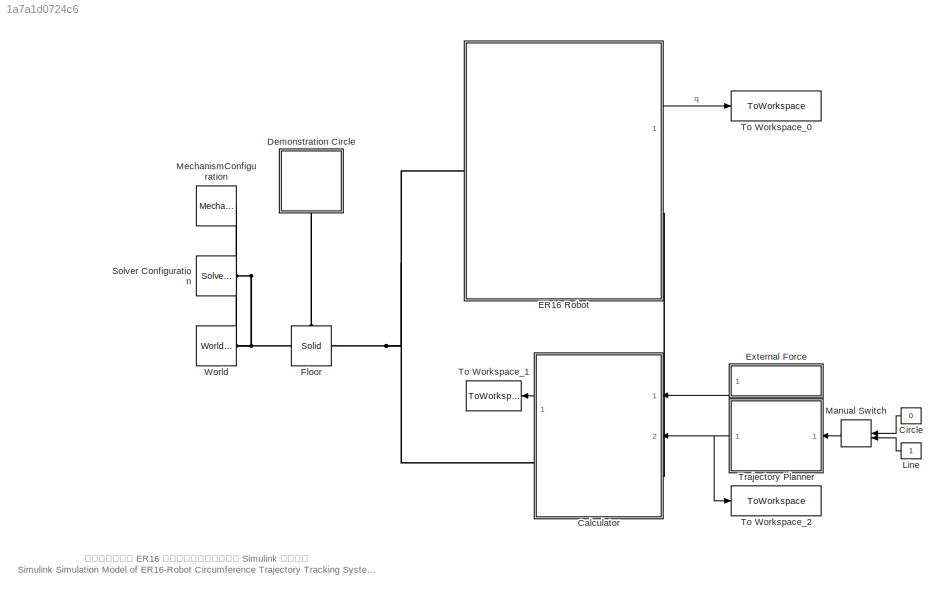
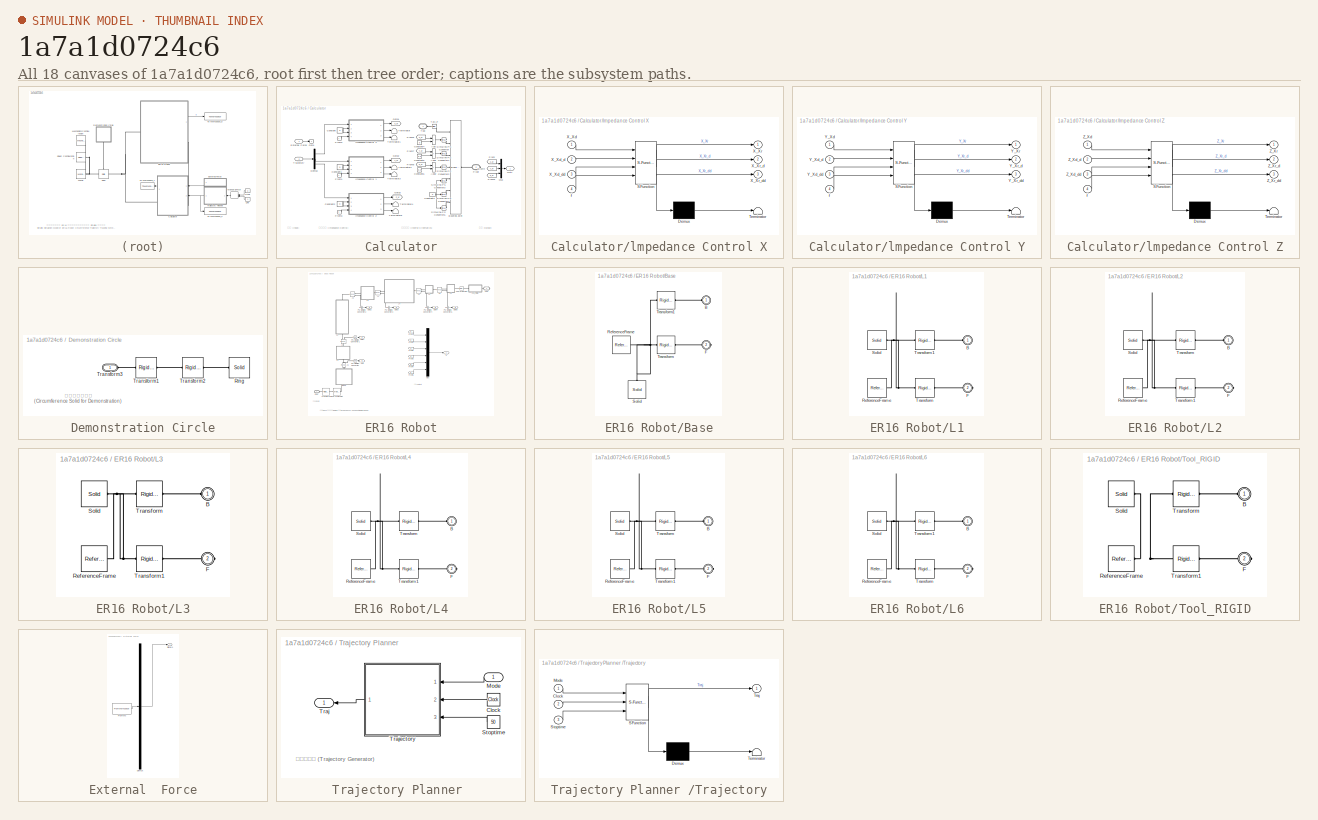
[diagram: thumbnail index - all 18 canvases of the model, root first then tree order]
MODEL slx_1a7a1d0724c6
KIND model
CONFIG AbsTol = auto
CONFIG EnableMultiTasking = off
CONFIG FixedStep = auto
CONFIG MaxStep = auto
CONFIG MinStep = auto
CONFIG PreLoadFcn = run('ER16_DataFile.m'); % 手动加载模型装配数据
CONFIG RelTol = 1e-3
CONFIG SampleTimeConstraint = Unconstrained
CONFIG Solver = ode15s
CONFIG SolverName = ode15s
CONFIG StartTime = 0.0
CONFIG StopTime = 50
WORKSPACE source: external: MATLAB File  (data not in archive)
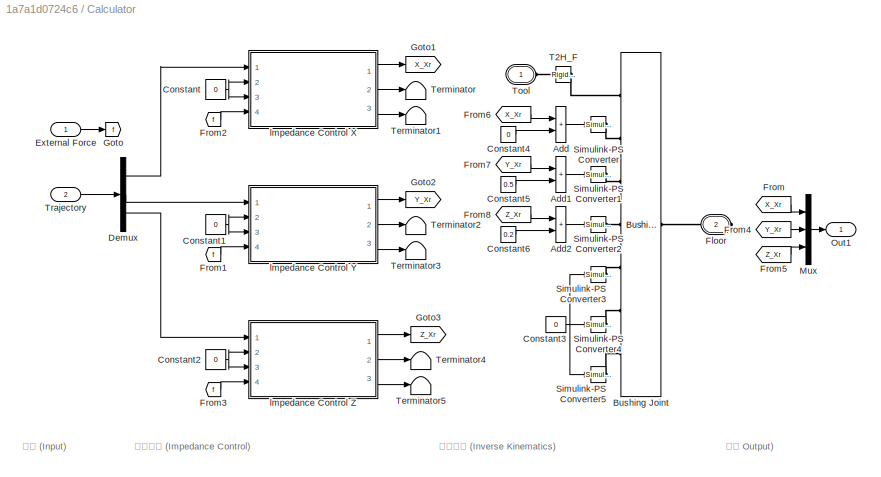
BLOCK [SubSystem] Calculator
  Ports = [2, 1, 0, 0, 0, 1, 1]
  RequestExecContextInheritance = off
BLOCK [Sum] Calculator/Add
  IconShape = rectangular
  Ports = [2, 1]
BLOCK [Sum] Calculator/Add1
  IconShape = rectangular
  Ports = [2, 1]
BLOCK [Sum] Calculator/Add2
  IconShape = rectangular
  Ports = [2, 1]
BLOCK [Reference] Calculator/Bushing Joint  REF=sm_lib/Joints/Bushing Joint
  Ports = [0, 0, 0, 0, 0, 7, 1]
  SourceBlock = sm_lib/Joints/Bushing Joint
  SourceProductBaseCode = MS
  SourceType = Bushing Joint
BLOCK [Constant] Calculator/Constant
  Value = 0
BLOCK [Constant] Calculator/Constant1
  Value = 0
BLOCK [Constant] Calculator/Constant2
  Value = 0
BLOCK [Constant] Calculator/Constant3
  Value = 0
BLOCK [Constant] Calculator/Constant4
  Value = 0
BLOCK [Constant] Calculator/Constant5
  Value = 0.5
BLOCK [Constant] Calculator/Constant6
  Value = 0.2
BLOCK [Demux] Calculator/Demux
  Outputs = 3
  Ports = [1, 3]
BLOCK [Inport] Calculator/External Force
BLOCK [PMIOPort] Calculator/Floor
  Port = 2
  Side = Right
BLOCK [From] Calculator/From
  GotoTag = X_Xr
BLOCK [From] Calculator/From1
  GotoTag = f
BLOCK [From] Calculator/From2
  GotoTag = f
BLOCK [From] Calculator/From3
  GotoTag = f
BLOCK [From] Calculator/From4
  GotoTag = Y_Xr
BLOCK [From] Calculator/From5
  GotoTag = Z_Xr
BLOCK [From] Calculator/From6
  GotoTag = X_Xr
BLOCK [From] Calculator/From7
  GotoTag = Y_Xr
BLOCK [From] Calculator/From8
  GotoTag = Z_Xr
BLOCK [Goto] Calculator/Goto
  GotoTag = f
BLOCK [Goto] Calculator/Goto1
  GotoTag = X_Xr
BLOCK [Goto] Calculator/Goto2
  GotoTag = Y_Xr
BLOCK [Goto] Calculator/Goto3
  GotoTag = Z_Xr
BLOCK [Mux] Calculator/Mux
  DisplayOption = bar
  Inputs = 3
  Ports = [3, 1]
BLOCK [Outport] Calculator/Out1
BLOCK [Reference] Calculator/Simulink-PS Converter  REF=nesl_utility/Simulink-PS
Converter
  Ports = [1, 0, 0, 0, 0, 0, 1]
  SourceBlock = nesl_utility/Simulink-PS\nConverter
  SourceProductBaseCode = SS
  SourceType = Simulink-PS\nConverter
BLOCK [Reference] Calculator/Simulink-PS Converter1  REF=nesl_utility/Simulink-PS
Converter
  Ports = [1, 0, 0, 0, 0, 0, 1]
  SourceBlock = nesl_utility/Simulink-PS\nConverter
  SourceProductBaseCode = SS
  SourceType = Simulink-PS\nConverter
BLOCK [Reference] Calculator/Simulink-PS Converter2  REF=nesl_utility/Simulink-PS
Converter
  Ports = [1, 0, 0, 0, 0, 0, 1]
  SourceBlock = nesl_utility/Simulink-PS\nConverter
  SourceProductBaseCode = SS
  SourceType = Simulink-PS\nConverter
BLOCK [Reference] Calculator/Simulink-PS Converter3  REF=nesl_utility/Simulink-PS
Converter
  Ports = [1, 0, 0, 0, 0, 0, 1]
  SourceBlock = nesl_utility/Simulink-PS\nConverter
  SourceProductBaseCode = SS
  SourceType = Simulink-PS\nConverter
BLOCK [Reference] Calculator/Simulink-PS Converter4  REF=nesl_utility/Simulink-PS
Converter
  Ports = [1, 0, 0, 0, 0, 0, 1]
  SourceBlock = nesl_utility/Simulink-PS\nConverter
  SourceProductBaseCode = SS
  SourceType = Simulink-PS\nConverter
BLOCK [Reference] Calculator/Simulink-PS Converter5  REF=nesl_utility/Simulink-PS
Converter
  Ports = [1, 0, 0, 0, 0, 0, 1]
  SourceBlock = nesl_utility/Simulink-PS\nConverter
  SourceProductBaseCode = SS
  SourceType = Simulink-PS\nConverter
BLOCK [Reference] Calculator/T2H_F  REF=sm_lib/Frames and
Transforms/Rigid
Transform
  Ports = [0, 0, 0, 0, 0, 1, 1]
  SourceBlock = sm_lib/Frames and\nTransforms/Rigid\nTransform
  SourceProductBaseCode = MS
  SourceType = Rigid\nTransform
BLOCK [Terminator] Calculator/Terminator
BLOCK [Terminator] Calculator/Terminator1
BLOCK [Terminator] Calculator/Terminator2
BLOCK [Terminator] Calculator/Terminator3
BLOCK [Terminator] Calculator/Terminator4
BLOCK [Terminator] Calculator/Terminator5
BLOCK [PMIOPort] Calculator/Tool
  Side = Left
BLOCK [Inport] Calculator/Trajectory
  Port = 2
BLOCK [SubSystem] Calculator/lmpedance Control X
  ErrorFcn = Stateflow.Translate.translate
  PermitHierarchicalResolution = ExplicitOnly
  Ports = [4, 3]
  RequestExecContextInheritance = off
  SFBlockType = MATLAB Function
  TreatAsAtomicUnit = on
BLOCK [Demux] Calculator/lmpedance Control X/ Demux 
  Outputs = 1
  Ports = [1, 1]
BLOCK [S-Function] Calculator/lmpedance Control X/ SFunction 
  EnableBusSupport = on
  FunctionName = sf_sfun
  PortCounts = [4 4]
  Ports = [4, 4]
  SFcnIsStateOwnerBlock = off
  SFunctionDeploymentMode = off
  Tag = Stateflow S-Function ER16_Simulation_Circle_2018a 2
BLOCK [Terminator] Calculator/lmpedance Control X/ Terminator 
BLOCK [Inport] Calculator/lmpedance Control X/X_Xd
BLOCK [Inport] Calculator/lmpedance Control X/X_Xd_d
  Port = 2
BLOCK [Inport] Calculator/lmpedance Control X/X_Xd_dd
  Port = 3
BLOCK [Outport] Calculator/lmpedance Control X/X_Xr
BLOCK [Outport] Calculator/lmpedance Control X/X_Xr_d
  Port = 2
BLOCK [Outport] Calculator/lmpedance Control X/X_Xr_dd
  Port = 3
BLOCK [Inport] Calculator/lmpedance Control X/f
  Port = 4
BLOCK [SubSystem] Calculator/lmpedance Control Y
  ErrorFcn = Stateflow.Translate.translate
  PermitHierarchicalResolution = ExplicitOnly
  Ports = [4, 3]
  RequestExecContextInheritance = off
  SFBlockType = MATLAB Function
  TreatAsAtomicUnit = on
BLOCK [Demux] Calculator/lmpedance Control Y/ Demux 
  Outputs = 1
  Ports = [1, 1]
BLOCK [S-Function] Calculator/lmpedance Control Y/ SFunction 
  EnableBusSupport = on
  FunctionName = sf_sfun
  PortCounts = [4 4]
  Ports = [4, 4]
  SFcnIsStateOwnerBlock = off
  SFunctionDeploymentMode = off
  Tag = Stateflow S-Function ER16_Simulation_Circle_2018a 1
BLOCK [Terminator] Calculator/lmpedance Control Y/ Terminator 
BLOCK [Inport] Calculator/lmpedance Control Y/Y_Xd
BLOCK [Inport] Calculator/lmpedance Control Y/Y_Xd_d
  Port = 2
BLOCK [Inport] Calculator/lmpedance Control Y/Y_Xd_dd
  Port = 3
BLOCK [Outport] Calculator/lmpedance Control Y/Y_Xr
BLOCK [Outport] Calculator/lmpedance Control Y/Y_Xr_d
  Port = 2
BLOCK [Outport] Calculator/lmpedance Control Y/Y_Xr_dd
  Port = 3
BLOCK [Inport] Calculator/lmpedance Control Y/f
  Port = 4
BLOCK [SubSystem] Calculator/lmpedance Control Z
  ErrorFcn = Stateflow.Translate.translate
  PermitHierarchicalResolution = ExplicitOnly
  Ports = [4, 3]
  RequestExecContextInheritance = off
  SFBlockType = MATLAB Function
  TreatAsAtomicUnit = on
BLOCK [Demux] Calculator/lmpedance Control Z/ Demux 
  Outputs = 1
  Ports = [1, 1]
BLOCK [S-Function] Calculator/lmpedance Control Z/ SFunction 
  EnableBusSupport = on
  FunctionName = sf_sfun
  PortCounts = [4 4]
  Ports = [4, 4]
  SFcnIsStateOwnerBlock = off
  SFunctionDeploymentMode = off
  Tag = Stateflow S-Function ER16_Simulation_Circle_2018a 3
BLOCK [Terminator] Calculator/lmpedance Control Z/ Terminator 
BLOCK [Inport] Calculator/lmpedance Control Z/Z_Xd
BLOCK [Inport] Calculator/lmpedance Control Z/Z_Xd_d
  Port = 2
BLOCK [Inport] Calculator/lmpedance Control Z/Z_Xd_dd
  Port = 3
BLOCK [Outport] Calculator/lmpedance Control Z/Z_Xr
BLOCK [Outport] Calculator/lmpedance Control Z/Z_Xr_d
  Port = 2
BLOCK [Outport] Calculator/lmpedance Control Z/Z_Xr_dd
  Port = 3
BLOCK [Inport] Calculator/lmpedance Control Z/f
  Port = 4
BLOCK [Constant] Circle
  Value = 0
BLOCK [SubSystem] Demonstration Circle
  Ports = [0, 0, 0, 0, 0, 1]
  RequestExecContextInheritance = off
BLOCK [Reference] Demonstration Circle/Ring  REF=sm_lib/Body Elements/Solid
  Ports = [0, 0, 0, 0, 0, 0, 1]
  SourceBlock = sm_lib/Body Elements/Solid
  SourceProductBaseCode = MS
  SourceType = File Solid
BLOCK [Reference] Demonstration Circle/Transform1  REF=sm_lib/Frames and
Transforms/Rigid
Transform
  Ports = [0, 0, 0, 0, 0, 1, 1]
  SourceBlock = sm_lib/Frames and\nTransforms/Rigid\nTransform
  SourceProductBaseCode = MS
  SourceType = Rigid\nTransform
BLOCK [Reference] Demonstration Circle/Transform2  REF=sm_lib/Frames and
Transforms/Rigid
Transform
  Ports = [0, 0, 0, 0, 0, 1, 1]
  SourceBlock = sm_lib/Frames and\nTransforms/Rigid\nTransform
  SourceProductBaseCode = MS
  SourceType = Rigid\nTransform
BLOCK [PMIOPort] Demonstration Circle/Transform3
  Side = Left
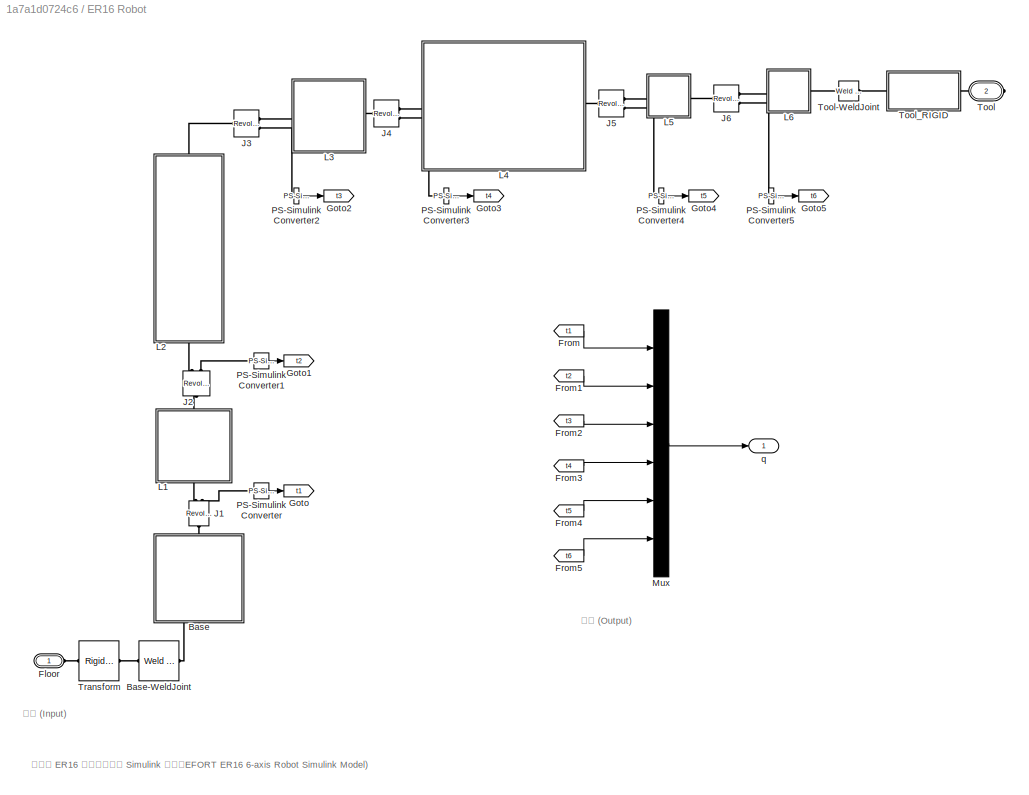
BLOCK [SubSystem] ER16 Robot
  Ports = [0, 1, 0, 0, 0, 1, 1]
  RequestExecContextInheritance = off
BLOCK [SubSystem] ER16 Robot/Base
  Ports = [0, 0, 0, 0, 0, 1, 1]
  RequestExecContextInheritance = off
BLOCK [Reference] ER16 Robot/Base-WeldJoint  REF=sm_lib/Joints/Weld Joint
  Ports = [0, 0, 0, 0, 0, 1, 1]
  SourceBlock = sm_lib/Joints/Weld Joint
  SourceProductBaseCode = MS
  SourceType = Weld Joint
BLOCK [PMIOPort] ER16 Robot/Base/B
  Side = Left
BLOCK [PMIOPort] ER16 Robot/Base/F
  Port = 2
  Side = Right
BLOCK [Reference] ER16 Robot/Base/ReferenceFrame  REF=sm_lib/Frames and
Transforms/Reference
Frame
  Ports = [0, 0, 0, 0, 0, 0, 1]
  SourceBlock = sm_lib/Frames and\nTransforms/Reference\nFrame
  SourceProductBaseCode = MS
  SourceType = Reference\nFrame
BLOCK [Reference] ER16 Robot/Base/Solid  REF=sm_lib/Body Elements/Solid
  Ports = [0, 0, 0, 0, 0, 0, 1]
  SourceBlock = sm_lib/Body Elements/Solid
  SourceProductBaseCode = MS
  SourceType = File Solid
BLOCK [Reference] ER16 Robot/Base/Transform  REF=sm_lib/Frames and
Transforms/Rigid
Transform
  Ports = [0, 0, 0, 0, 0, 1, 1]
  SourceBlock = sm_lib/Frames and\nTransforms/Rigid\nTransform
  SourceProductBaseCode = MS
  SourceType = Rigid\nTransform
BLOCK [Reference] ER16 Robot/Base/Transform1  REF=sm_lib/Frames and
Transforms/Rigid
Transform
  Ports = [0, 0, 0, 0, 0, 1, 1]
  SourceBlock = sm_lib/Frames and\nTransforms/Rigid\nTransform
  SourceProductBaseCode = MS
  SourceType = Rigid\nTransform
BLOCK [PMIOPort] ER16 Robot/Floor
  Side = Left
BLOCK [From] ER16 Robot/From
  GotoTag = t1
BLOCK [From] ER16 Robot/From1
  GotoTag = t2
BLOCK [From] ER16 Robot/From2
  GotoTag = t3
BLOCK [From] ER16 Robot/From3
  GotoTag = t4
BLOCK [From] ER16 Robot/From4
  GotoTag = t5
BLOCK [From] ER16 Robot/From5
  GotoTag = t6
BLOCK [Goto] ER16 Robot/Goto
  GotoTag = t1
BLOCK [Goto] ER16 Robot/Goto1
  GotoTag = t2
BLOCK [Goto] ER16 Robot/Goto2
  GotoTag = t3
BLOCK [Goto] ER16 Robot/Goto3
  GotoTag = t4
BLOCK [Goto] ER16 Robot/Goto4
  GotoTag = t5
BLOCK [Goto] ER16 Robot/Goto5
  GotoTag = t6
BLOCK [Reference] ER16 Robot/J1  REF=sm_lib/Joints/Revolute Joint
  Ports = [0, 0, 0, 0, 0, 1, 2]
  SourceBlock = sm_lib/Joints/Revolute Joint
  SourceProductBaseCode = MS
  SourceType = Revolute Joint
BLOCK [Reference] ER16 Robot/J2  REF=sm_lib/Joints/Revolute Joint
  Ports = [0, 0, 0, 0, 0, 1, 2]
  SourceBlock = sm_lib/Joints/Revolute Joint
  SourceProductBaseCode = MS
  SourceType = Revolute Joint
BLOCK [Reference] ER16 Robot/J3  REF=sm_lib/Joints/Revolute Joint
  Ports = [0, 0, 0, 0, 0, 1, 2]
  SourceBlock = sm_lib/Joints/Revolute Joint
  SourceProductBaseCode = MS
  SourceType = Revolute Joint
BLOCK [Reference] ER16 Robot/J4  REF=sm_lib/Joints/Revolute Joint
  Ports = [0, 0, 0, 0, 0, 1, 2]
  SourceBlock = sm_lib/Joints/Revolute Joint
  SourceProductBaseCode = MS
  SourceType = Revolute Joint
BLOCK [Reference] ER16 Robot/J5  REF=sm_lib/Joints/Revolute Joint
  Ports = [0, 0, 0, 0, 0, 1, 2]
  SourceBlock = sm_lib/Joints/Revolute Joint
  SourceProductBaseCode = MS
  SourceType = Revolute Joint
BLOCK [Reference] ER16 Robot/J6  REF=sm_lib/Joints/Revolute Joint
  Ports = [0, 0, 0, 0, 0, 1, 2]
  SourceBlock = sm_lib/Joints/Revolute Joint
  SourceProductBaseCode = MS
  SourceType = Revolute Joint
BLOCK [SubSystem] ER16 Robot/L1
  Ports = [0, 0, 0, 0, 0, 1, 1]
  RequestExecContextInheritance = off
BLOCK [PMIOPort] ER16 Robot/L1/B
  Side = Left
BLOCK [PMIOPort] ER16 Robot/L1/F
  Port = 2
  Side = Right
BLOCK [Reference] ER16 Robot/L1/ReferenceFrame  REF=sm_lib/Frames and
Transforms/Reference
Frame
  Ports = [0, 0, 0, 0, 0, 0, 1]
  SourceBlock = sm_lib/Frames and\nTransforms/Reference\nFrame
  SourceProductBaseCode = MS
  SourceType = Reference\nFrame
BLOCK [Reference] ER16 Robot/L1/Solid  REF=sm_lib/Body Elements/Solid
  Ports = [0, 0, 0, 0, 0, 0, 1]
  SourceBlock = sm_lib/Body Elements/Solid
  SourceProductBaseCode = MS
  SourceType = File Solid
BLOCK [Reference] ER16 Robot/L1/Transform  REF=sm_lib/Frames and
Transforms/Rigid
Transform
  Ports = [0, 0, 0, 0, 0, 1, 1]
  SourceBlock = sm_lib/Frames and\nTransforms/Rigid\nTransform
  SourceProductBaseCode = MS
  SourceType = Rigid\nTransform
BLOCK [Reference] ER16 Robot/L1/Transform1  REF=sm_lib/Frames and
Transforms/Rigid
Transform
  Ports = [0, 0, 0, 0, 0, 1, 1]
  SourceBlock = sm_lib/Frames and\nTransforms/Rigid\nTransform
  SourceProductBaseCode = MS
  SourceType = Rigid\nTransform
BLOCK [SubSystem] ER16 Robot/L2
  Ports = [0, 0, 0, 0, 0, 1, 1]
  RequestExecContextInheritance = off
BLOCK [PMIOPort] ER16 Robot/L2/B
  Side = Left
BLOCK [PMIOPort] ER16 Robot/L2/F
  Port = 2
  Side = Right
BLOCK [Reference] ER16 Robot/L2/ReferenceFrame  REF=sm_lib/Frames and
Transforms/Reference
Frame
  Ports = [0, 0, 0, 0, 0, 0, 1]
  SourceBlock = sm_lib/Frames and\nTransforms/Reference\nFrame
  SourceProductBaseCode = MS
  SourceType = Reference\nFrame
BLOCK [Reference] ER16 Robot/L2/Solid  REF=sm_lib/Body Elements/Solid
  Ports = [0, 0, 0, 0, 0, 0, 1]
  SourceBlock = sm_lib/Body Elements/Solid
  SourceProductBaseCode = MS
  SourceType = File Solid
BLOCK [Reference] ER16 Robot/L2/Transform  REF=sm_lib/Frames and
Transforms/Rigid
Transform
  Ports = [0, 0, 0, 0, 0, 1, 1]
  SourceBlock = sm_lib/Frames and\nTransforms/Rigid\nTransform
  SourceProductBaseCode = MS
  SourceType = Rigid\nTransform
BLOCK [Reference] ER16 Robot/L2/Transform1  REF=sm_lib/Frames and
Transforms/Rigid
Transform
  Ports = [0, 0, 0, 0, 0, 1, 1]
  SourceBlock = sm_lib/Frames and\nTransforms/Rigid\nTransform
  SourceProductBaseCode = MS
  SourceType = Rigid\nTransform
BLOCK [SubSystem] ER16 Robot/L3
  Ports = [0, 0, 0, 0, 0, 1, 1]
  RequestExecContextInheritance = off
BLOCK [PMIOPort] ER16 Robot/L3/B
  Side = Left
BLOCK [PMIOPort] ER16 Robot/L3/F
  Port = 2
  Side = Right
BLOCK [Reference] ER16 Robot/L3/ReferenceFrame  REF=sm_lib/Frames and
Transforms/Reference
Frame
  Ports = [0, 0, 0, 0, 0, 0, 1]
  SourceBlock = sm_lib/Frames and\nTransforms/Reference\nFrame
  SourceProductBaseCode = MS
  SourceType = Reference\nFrame
BLOCK [Reference] ER16 Robot/L3/Solid  REF=sm_lib/Body Elements/Solid
  Ports = [0, 0, 0, 0, 0, 0, 1]
  SourceBlock = sm_lib/Body Elements/Solid
  SourceProductBaseCode = MS
  SourceType = File Solid
BLOCK [Reference] ER16 Robot/L3/Transform  REF=sm_lib/Frames and
Transforms/Rigid
Transform
  Ports = [0, 0, 0, 0, 0, 1, 1]
  SourceBlock = sm_lib/Frames and\nTransforms/Rigid\nTransform
  SourceProductBaseCode = MS
  SourceType = Rigid\nTransform
BLOCK [Reference] ER16 Robot/L3/Transform1  REF=sm_lib/Frames and
Transforms/Rigid
Transform
  Ports = [0, 0, 0, 0, 0, 1, 1]
  SourceBlock = sm_lib/Frames and\nTransforms/Rigid\nTransform
  SourceProductBaseCode = MS
  SourceType = Rigid\nTransform
BLOCK [SubSystem] ER16 Robot/L4
  Ports = [0, 0, 0, 0, 0, 1, 1]
  RequestExecContextInheritance = off
BLOCK [PMIOPort] ER16 Robot/L4/B
  Side = Left
BLOCK [PMIOPort] ER16 Robot/L4/F
  Port = 2
  Side = Right
BLOCK [Reference] ER16 Robot/L4/ReferenceFrame  REF=sm_lib/Frames and
Transforms/Reference
Frame
  Ports = [0, 0, 0, 0, 0, 0, 1]
  SourceBlock = sm_lib/Frames and\nTransforms/Reference\nFrame
  SourceProductBaseCode = MS
  SourceType = Reference\nFrame
BLOCK [Reference] ER16 Robot/L4/Solid  REF=sm_lib/Body Elements/Solid
  Ports = [0, 0, 0, 0, 0, 0, 1]
  SourceBlock = sm_lib/Body Elements/Solid
  SourceProductBaseCode = MS
  SourceType = File Solid
BLOCK [Reference] ER16 Robot/L4/Transform  REF=sm_lib/Frames and
Transforms/Rigid
Transform
  Ports = [0, 0, 0, 0, 0, 1, 1]
  SourceBlock = sm_lib/Frames and\nTransforms/Rigid\nTransform
  SourceProductBaseCode = MS
  SourceType = Rigid\nTransform
BLOCK [Reference] ER16 Robot/L4/Transform1  REF=sm_lib/Frames and
Transforms/Rigid
Transform
  Ports = [0, 0, 0, 0, 0, 1, 1]
  SourceBlock = sm_lib/Frames and\nTransforms/Rigid\nTransform
  SourceProductBaseCode = MS
  SourceType = Rigid\nTransform
BLOCK [SubSystem] ER16 Robot/L5
  Ports = [0, 0, 0, 0, 0, 1, 1]
  RequestExecContextInheritance = off
BLOCK [PMIOPort] ER16 Robot/L5/B
  Side = Left
BLOCK [PMIOPort] ER16 Robot/L5/F
  Port = 2
  Side = Right
BLOCK [Reference] ER16 Robot/L5/ReferenceFrame  REF=sm_lib/Frames and
Transforms/Reference
Frame
  Ports = [0, 0, 0, 0, 0, 0, 1]
  SourceBlock = sm_lib/Frames and\nTransforms/Reference\nFrame
  SourceProductBaseCode = MS
  SourceType = Reference\nFrame
BLOCK [Reference] ER16 Robot/L5/Solid  REF=sm_lib/Body Elements/Solid
  Ports = [0, 0, 0, 0, 0, 0, 1]
  SourceBlock = sm_lib/Body Elements/Solid
  SourceProductBaseCode = MS
  SourceType = File Solid
BLOCK [Reference] ER16 Robot/L5/Transform  REF=sm_lib/Frames and
Transforms/Rigid
Transform
  Ports = [0, 0, 0, 0, 0, 1, 1]
  SourceBlock = sm_lib/Frames and\nTransforms/Rigid\nTransform
  SourceProductBaseCode = MS
  SourceType = Rigid\nTransform
BLOCK [Reference] ER16 Robot/L5/Transform1  REF=sm_lib/Frames and
Transforms/Rigid
Transform
  Ports = [0, 0, 0, 0, 0, 1, 1]
  SourceBlock = sm_lib/Frames and\nTransforms/Rigid\nTransform
  SourceProductBaseCode = MS
  SourceType = Rigid\nTransform
BLOCK [SubSystem] ER16 Robot/L6
  Ports = [0, 0, 0, 0, 0, 1, 1]
  RequestExecContextInheritance = off
BLOCK [PMIOPort] ER16 Robot/L6/B
  Side = Left
BLOCK [PMIOPort] ER16 Robot/L6/F
  Port = 2
  Side = Right
BLOCK [Reference] ER16 Robot/L6/ReferenceFrame  REF=sm_lib/Frames and
Transforms/Reference
Frame
  Ports = [0, 0, 0, 0, 0, 0, 1]
  SourceBlock = sm_lib/Frames and\nTransforms/Reference\nFrame
  SourceProductBaseCode = MS
  SourceType = Reference\nFrame
BLOCK [Reference] ER16 Robot/L6/Solid  REF=sm_lib/Body Elements/Solid
  Ports = [0, 0, 0, 0, 0, 0, 1]
  SourceBlock = sm_lib/Body Elements/Solid
  SourceProductBaseCode = MS
  SourceType = File Solid
BLOCK [Reference] ER16 Robot/L6/Transform  REF=sm_lib/Frames and
Transforms/Rigid
Transform
  Ports = [0, 0, 0, 0, 0, 1, 1]
  SourceBlock = sm_lib/Frames and\nTransforms/Rigid\nTransform
  SourceProductBaseCode = MS
  SourceType = Rigid\nTransform
BLOCK [Reference] ER16 Robot/L6/Transform1  REF=sm_lib/Frames and
Transforms/Rigid
Transform
  Ports = [0, 0, 0, 0, 0, 1, 1]
  SourceBlock = sm_lib/Frames and\nTransforms/Rigid\nTransform
  SourceProductBaseCode = MS
  SourceType = Rigid\nTransform
BLOCK [Mux] ER16 Robot/Mux
  DisplayOption = bar
  Inputs = 6
  Ports = [6, 1]
BLOCK [Reference] ER16 Robot/PS-Simulink Converter  REF=nesl_utility/PS-Simulink
Converter
  Ports = [0, 1, 0, 0, 0, 1]
  SourceBlock = nesl_utility/PS-Simulink\nConverter
  SourceProductBaseCode = SS
  SourceType = PS-Simulink\nConverter
BLOCK [Reference] ER16 Robot/PS-Simulink Converter1  REF=nesl_utility/PS-Simulink
Converter
  Ports = [0, 1, 0, 0, 0, 1]
  SourceBlock = nesl_utility/PS-Simulink\nConverter
  SourceProductBaseCode = SS
  SourceType = PS-Simulink\nConverter
BLOCK [Reference] ER16 Robot/PS-Simulink Converter2  REF=nesl_utility/PS-Simulink
Converter
  Ports = [0, 1, 0, 0, 0, 1]
  SourceBlock = nesl_utility/PS-Simulink\nConverter
  SourceProductBaseCode = SS
  SourceType = PS-Simulink\nConverter
BLOCK [Reference] ER16 Robot/PS-Simulink Converter3  REF=nesl_utility/PS-Simulink
Converter
  Ports = [0, 1, 0, 0, 0, 1]
  SourceBlock = nesl_utility/PS-Simulink\nConverter
  SourceProductBaseCode = SS
  SourceType = PS-Simulink\nConverter
BLOCK [Reference] ER16 Robot/PS-Simulink Converter4  REF=nesl_utility/PS-Simulink
Converter
  Ports = [0, 1, 0, 0, 0, 1]
  SourceBlock = nesl_utility/PS-Simulink\nConverter
  SourceProductBaseCode = SS
  SourceType = PS-Simulink\nConverter
BLOCK [Reference] ER16 Robot/PS-Simulink Converter5  REF=nesl_utility/PS-Simulink
Converter
  Ports = [0, 1, 0, 0, 0, 1]
  SourceBlock = nesl_utility/PS-Simulink\nConverter
  SourceProductBaseCode = SS
  SourceType = PS-Simulink\nConverter
BLOCK [PMIOPort] ER16 Robot/Tool
  Port = 2
  Side = Right
BLOCK [Reference] ER16 Robot/Tool-WeldJoint  REF=sm_lib/Joints/Weld Joint
  Ports = [0, 0, 0, 0, 0, 1, 1]
  SourceBlock = sm_lib/Joints/Weld Joint
  SourceProductBaseCode = MS
  SourceType = Weld Joint
BLOCK [SubSystem] ER16 Robot/Tool_RIGID
  Ports = [0, 0, 0, 0, 0, 1, 1]
  RequestExecContextInheritance = off
BLOCK [PMIOPort] ER16 Robot/Tool_RIGID/B
  Side = Left
BLOCK [PMIOPort] ER16 Robot/Tool_RIGID/F
  Port = 2
  Side = Right
BLOCK [Reference] ER16 Robot/Tool_RIGID/ReferenceFrame  REF=sm_lib/Frames and
Transforms/Reference
Frame
  Ports = [0, 0, 0, 0, 0, 0, 1]
  SourceBlock = sm_lib/Frames and\nTransforms/Reference\nFrame
  SourceProductBaseCode = MS
  SourceType = Reference\nFrame
BLOCK [Reference] ER16 Robot/Tool_RIGID/Solid  REF=sm_lib/Body Elements/Solid
  Ports = [0, 0, 0, 0, 0, 0, 1]
  SourceBlock = sm_lib/Body Elements/Solid
  SourceProductBaseCode = MS
  SourceType = File Solid
BLOCK [Reference] ER16 Robot/Tool_RIGID/Transform  REF=sm_lib/Frames and
Transforms/Rigid
Transform
  Ports = [0, 0, 0, 0, 0, 1, 1]
  SourceBlock = sm_lib/Frames and\nTransforms/Rigid\nTransform
  SourceProductBaseCode = MS
  SourceType = Rigid\nTransform
BLOCK [Reference] ER16 Robot/Tool_RIGID/Transform1  REF=sm_lib/Frames and
Transforms/Rigid
Transform
  Ports = [0, 0, 0, 0, 0, 1, 1]
  SourceBlock = sm_lib/Frames and\nTransforms/Rigid\nTransform
  SourceProductBaseCode = MS
  SourceType = Rigid\nTransform
BLOCK [Reference] ER16 Robot/Transform  REF=sm_lib/Frames and
Transforms/Rigid
Transform
  Ports = [0, 0, 0, 0, 0, 1, 1]
  SourceBlock = sm_lib/Frames and\nTransforms/Rigid\nTransform
  SourceProductBaseCode = MS
  SourceType = Rigid\nTransform
BLOCK [Outport] ER16 Robot/q
BLOCK [SubSystem] External  Force
  ClipboardFcn = sigbuilder_block('clipboard');
  CloseFcn = sigbuilder_block('close');
  ContinueFcn = sigbuilder_block('continue');
  CopyFcn = sigbuilder_block('copy');
  DeleteFcn = sigbuilder_block('delete');
  LoadFcn = sigbuilder_block('load');
  MaskHideContents = on
  ModelCloseFcn = sigbuilder_block('modelClose');
  NameChangeFcn = sigbuilder_block('namechange');
  OpenFcn = sigbuilder_block('open',[186 132 550.8 400.2 ]);
  PauseFcn = sigbuilder_block('pause');
  Ports = [0, 1]
  PreSaveFcn = sigbuilder_block('preSave');
  RequestExecContextInheritance = off
  StartFcn = sigbuilder_block('start');
  StopFcn = sigbuilder_block('stop');
  Tag = STV Subsys
BLOCK [Demux] External  Force/Demux
  DisplayOption = none
  Outputs = 1
  Ports = [1, 1]
  Tag = STV Demux
BLOCK [FromWorkspace] External  Force/FromWs
  Tag = STV FromWs
  VariableName = tuvar
BLOCK [Outport] External  Force/Signal 1
  Tag = STV Outport
BLOCK [Reference] Floor  REF=sm_lib/Body Elements/Solid
  Ports = [0, 0, 0, 0, 0, 0, 1]
  SourceBlock = sm_lib/Body Elements/Solid
  SourceProductBaseCode = MS
  SourceType = Brick Solid
BLOCK [Constant] Line
BLOCK [ManualSwitch] Manual Switch
BLOCK [Reference] MechanismConfiguration  REF=sm_lib/Utilities/Mechanism
Configuration
  Ports = [0, 0, 0, 0, 0, 0, 1]
  SourceBlock = sm_lib/Utilities/Mechanism\nConfiguration
  SourceProductBaseCode = MS
  SourceType = Mechanism\nConfiguration
BLOCK [Reference] Solver Configuration  REF=nesl_utility/Solver
Configuration
  Ports = [0, 0, 0, 0, 0, 0, 1]
  SourceBlock = nesl_utility/Solver\nConfiguration
  SourceProductBaseCode = SS
  SourceType = Solver\nConfiguration
BLOCK [ToWorkspace] To Workspace_0
  FixptAsFi = on
  MaxDataPoints = inf
  Ports = [1]
  SampleTime = -1
  SaveFormat = Timeseries
  VariableName = q
BLOCK [ToWorkspace] To Workspace_1
  FixptAsFi = on
  MaxDataPoints = inf
  Ports = [1]
  SampleTime = -1
  VariableName = Xr
BLOCK [ToWorkspace] To Workspace_2
  FixptAsFi = on
  MaxDataPoints = inf
  Ports = [1]
  SampleTime = -1
  VariableName = Xd
BLOCK [SubSystem] Trajectory Planner 
  Ports = [1, 1]
  RequestExecContextInheritance = off
BLOCK [Clock] Trajectory Planner /Clock
BLOCK [Inport] Trajectory Planner /Mode
BLOCK [Constant] Trajectory Planner /Stoptime
  Value = 50
BLOCK [Outport] Trajectory Planner /Traj
BLOCK [SubSystem] Trajectory Planner /Trajectory
  ErrorFcn = Stateflow.Translate.translate
  PermitHierarchicalResolution = ExplicitOnly
  Ports = [3, 1]
  RequestExecContextInheritance = off
  SFBlockType = MATLAB Function
  TreatAsAtomicUnit = on
BLOCK [Demux] Trajectory Planner /Trajectory/ Demux 
  Outputs = 1
  Ports = [1, 1]
BLOCK [S-Function] Trajectory Planner /Trajectory/ SFunction 
  EnableBusSupport = on
  FunctionName = sf_sfun
  PortCounts = [3 2]
  Ports = [3, 2]
  SFcnIsStateOwnerBlock = off
  SFunctionDeploymentMode = off
  Tag = Stateflow S-Function ER16_Simulation_Circle_2018a 4
BLOCK [Terminator] Trajectory Planner /Trajectory/ Terminator 
BLOCK [Inport] Trajectory Planner /Trajectory/Clock
  Port = 2
BLOCK [Inport] Trajectory Planner /Trajectory/Mode
BLOCK [Inport] Trajectory Planner /Trajectory/Stoptime
  Port = 3
BLOCK [Outport] Trajectory Planner /Trajectory/Traj
  VectorParamsAs1DForOutWhenUnconnected = off
BLOCK [Reference] World  REF=sm_lib/Frames and
Transforms/World Frame
  Ports = [0, 0, 0, 0, 0, 0, 1]
  SourceBlock = sm_lib/Frames and\nTransforms/World Frame
  SourceProductBaseCode = MS
  SourceType = World Frame
ANNOTATION (root): 基于阻抗控制的 ER16 机器人圆周轨迹跟踪系统 Simulink 仿真模型 Simulink Simulation Model of ER16-Robot Circumference Trajectory Tracking System Based on Impedance Control
ANNOTATION Calculator: 输入 (Input)
ANNOTATION Calculator: 输出 Output)
ANNOTATION Calculator: 逆运动学 (Inverse Kinematics)
ANNOTATION Calculator: 阻抗控制 (Impedance Control)
ANNOTATION Demonstration Circle: 演示用圆周实体 (Circumference Solid for Demonstration)
ANNOTATION ER16 Robot: 输入 (Input)
ANNOTATION ER16 Robot: 输出 (Output)
ANNOTATION ER16 Robot: 埃夫特 ER16 型六轴机器人 Simulink 模型（EFORT ER16 6-axis Robot Simulink Model)
ANNOTATION Trajectory Planner : 轨迹生成器 (Trajectory Generator)
LINE Calculator/Add1:1 -> Calculator/Simulink-PS Converter1:1
LINE Calculator/Add2:1 -> Calculator/Simulink-PS Converter2:1
LINE Calculator/Add:1 -> Calculator/Simulink-PS Converter:1
NET Calculator/Constant1:1 -> Calculator/lmpedance Control Y:2, Calculator/lmpedance Control Y:3
NET Calculator/Constant2:1 -> Calculator/lmpedance Control Z:2, Calculator/lmpedance Control Z:3
NET Calculator/Constant3:1 -> Calculator/Simulink-PS Converter3:1, Calculator/Simulink-PS Converter4:1, Calculator/Simulink-PS Converter5:1
LINE Calculator/Constant4:1 -> Calculator/Add:2
LINE Calculator/Constant5:1 -> Calculator/Add1:2
LINE Calculator/Constant6:1 -> Calculator/Add2:2
NET Calculator/Constant:1 -> Calculator/lmpedance Control X:2, Calculator/lmpedance Control X:3
LINE Calculator/Demux:1 -> Calculator/lmpedance Control X:1
LINE Calculator/Demux:2 -> Calculator/lmpedance Control Y:1
LINE Calculator/Demux:3 -> Calculator/lmpedance Control Z:1
LINE Calculator/External Force:1 -> Calculator/Goto:1
LINE Calculator/From1:1 -> Calculator/lmpedance Control Y:4
LINE Calculator/From2:1 -> Calculator/lmpedance Control X:4
LINE Calculator/From3:1 -> Calculator/lmpedance Control Z:4
LINE Calculator/From4:1 -> Calculator/Mux:2
LINE Calculator/From5:1 -> Calculator/Mux:3
LINE Calculator/From6:1 -> Calculator/Add:1
LINE Calculator/From7:1 -> Calculator/Add1:1
LINE Calculator/From8:1 -> Calculator/Add2:1
LINE Calculator/From:1 -> Calculator/Mux:1
LINE Calculator/Mux:1 -> Calculator/Out1:1
LINE Calculator/Trajectory:1 -> Calculator/Demux:1
LINE Calculator/lmpedance Control X:1 -> Calculator/Goto1:1
LINE Calculator/lmpedance Control X:2 -> Calculator/Terminator:1
LINE Calculator/lmpedance Control X:3 -> Calculator/Terminator1:1
LINE Calculator/lmpedance Control Y:1 -> Calculator/Goto2:1
LINE Calculator/lmpedance Control Y:2 -> Calculator/Terminator2:1
LINE Calculator/lmpedance Control Y:3 -> Calculator/Terminator3:1
LINE Calculator/lmpedance Control Z:1 -> Calculator/Goto3:1
LINE Calculator/lmpedance Control Z:2 -> Calculator/Terminator4:1
LINE Calculator/lmpedance Control Z:3 -> Calculator/Terminator5:1
LINE Calculator:1 -> To Workspace_1:1
LINE Circle:1 -> Manual Switch:1
LINE ER16 Robot/From1:1 -> ER16 Robot/Mux:2
LINE ER16 Robot/From2:1 -> ER16 Robot/Mux:3
LINE ER16 Robot/From3:1 -> ER16 Robot/Mux:4
LINE ER16 Robot/From4:1 -> ER16 Robot/Mux:5
LINE ER16 Robot/From5:1 -> ER16 Robot/Mux:6
LINE ER16 Robot/From:1 -> ER16 Robot/Mux:1
LINE ER16 Robot/Mux:1 -> ER16 Robot/q:1
LINE ER16 Robot/PS-Simulink Converter1:1 -> ER16 Robot/Goto1:1
LINE ER16 Robot/PS-Simulink Converter2:1 -> ER16 Robot/Goto2:1
LINE ER16 Robot/PS-Simulink Converter3:1 -> ER16 Robot/Goto3:1
LINE ER16 Robot/PS-Simulink Converter4:1 -> ER16 Robot/Goto4:1
LINE ER16 Robot/PS-Simulink Converter5:1 -> ER16 Robot/Goto5:1
LINE ER16 Robot/PS-Simulink Converter:1 -> ER16 Robot/Goto:1
LINE ER16 Robot:1 -> To Workspace_0:1
LINE External  Force:1 -> Calculator:1
LINE Line:1 -> Manual Switch:2
LINE Manual Switch:1 -> Trajectory Planner :1
LINE Trajectory Planner /Clock:1 -> Trajectory Planner /Trajectory:2
LINE Trajectory Planner /Mode:1 -> Trajectory Planner /Trajectory:1
LINE Trajectory Planner /Stoptime:1 -> Trajectory Planner /Trajectory:3
LINE Trajectory Planner /Trajectory:1 -> Trajectory Planner /Traj:1
NET Trajectory Planner :1 -> Calculator:2, To Workspace_2:1
PLINE Calculator/Bushing Joint:LConn1 -- Calculator/T2H_F:RConn1
PLINE Calculator/Bushing Joint:LConn2 -- Calculator/Simulink-PS Converter:RConn1
PLINE Calculator/Bushing Joint:LConn3 -- Calculator/Simulink-PS Converter1:RConn1
PLINE Calculator/Bushing Joint:LConn4 -- Calculator/Simulink-PS Converter2:RConn1
PLINE Calculator/Bushing Joint:LConn5 -- Calculator/Simulink-PS Converter3:RConn1
PLINE Calculator/Bushing Joint:LConn6 -- Calculator/Simulink-PS Converter4:RConn1
PLINE Calculator/Bushing Joint:LConn7 -- Calculator/Simulink-PS Converter5:RConn1
PLINE Calculator/Bushing Joint:RConn1 -- Calculator/Floor:RConn1
PLINE Calculator/T2H_F:LConn1 -- Calculator/Tool:RConn1
PLINE Calculator:LConn1 -- ER16 Robot:RConn1
PNET net1: Calculator:RConn1 -- Demonstration Circle:LConn1 -- ER16 Robot:LConn1 -- Floor:RConn1 -- MechanismConfiguration:RConn1 -- Solver Configuration:RConn1 -- World:RConn1
PLINE Demonstration Circle/Ring:RConn1 -- Demonstration Circle/Transform2:RConn1
PLINE Demonstration Circle/Transform1:LConn1 -- Demonstration Circle/Transform3:RConn1
PLINE Demonstration Circle/Transform1:RConn1 -- Demonstration Circle/Transform2:LConn1
PLINE ER16 Robot/Base-WeldJoint:LConn1 -- ER16 Robot/Transform:RConn1
PLINE ER16 Robot/Base-WeldJoint:RConn1 -- ER16 Robot/Base:LConn1
PLINE ER16 Robot/Base/B:RConn1 -- ER16 Robot/Base/Transform1:RConn1
PLINE ER16 Robot/Base/F:RConn1 -- ER16 Robot/Base/Transform:RConn1
PNET net2: ER16 Robot/Base/ReferenceFrame:RConn1 -- ER16 Robot/Base/Solid:RConn1 -- ER16 Robot/Base/Transform1:LConn1 -- ER16 Robot/Base/Transform:LConn1
PLINE ER16 Robot/Base:RConn1 -- ER16 Robot/J1:LConn1
PLINE ER16 Robot/Floor:RConn1 -- ER16 Robot/Transform:LConn1
PLINE ER16 Robot/J1:RConn1 -- ER16 Robot/L1:LConn1
PLINE ER16 Robot/J1:RConn2 -- ER16 Robot/PS-Simulink Converter:LConn1
PLINE ER16 Robot/J2:LConn1 -- ER16 Robot/L1:RConn1
PLINE ER16 Robot/J2:RConn1 -- ER16 Robot/L2:LConn1
PLINE ER16 Robot/J2:RConn2 -- ER16 Robot/PS-Simulink Converter1:LConn1
PLINE ER16 Robot/J3:LConn1 -- ER16 Robot/L2:RConn1
PLINE ER16 Robot/J3:RConn1 -- ER16 Robot/L3:LConn1
PLINE ER16 Robot/J3:RConn2 -- ER16 Robot/PS-Simulink Converter2:LConn1
PLINE ER16 Robot/J4:LConn1 -- ER16 Robot/L3:RConn1
PLINE ER16 Robot/J4:RConn1 -- ER16 Robot/L4:LConn1
PLINE ER16 Robot/J4:RConn2 -- ER16 Robot/PS-Simulink Converter3:LConn1
PLINE ER16 Robot/J5:LConn1 -- ER16 Robot/L4:RConn1
PLINE ER16 Robot/J5:RConn1 -- ER16 Robot/L5:LConn1
PLINE ER16 Robot/J5:RConn2 -- ER16 Robot/PS-Simulink Converter4:LConn1
PLINE ER16 Robot/J6:LConn1 -- ER16 Robot/L5:RConn1
PLINE ER16 Robot/J6:RConn1 -- ER16 Robot/L6:LConn1
PLINE ER16 Robot/J6:RConn2 -- ER16 Robot/PS-Simulink Converter5:LConn1
PLINE ER16 Robot/L1/B:RConn1 -- ER16 Robot/L1/Transform1:RConn1
PLINE ER16 Robot/L1/F:RConn1 -- ER16 Robot/L1/Transform:RConn1
PNET net3: ER16 Robot/L1/ReferenceFrame:RConn1 -- ER16 Robot/L1/Solid:RConn1 -- ER16 Robot/L1/Transform1:LConn1 -- ER16 Robot/L1/Transform:LConn1
PLINE ER16 Robot/L2/B:RConn1 -- ER16 Robot/L2/Transform:RConn1
PLINE ER16 Robot/L2/F:RConn1 -- ER16 Robot/L2/Transform1:RConn1
PNET net4: ER16 Robot/L2/ReferenceFrame:RConn1 -- ER16 Robot/L2/Solid:RConn1 -- ER16 Robot/L2/Transform1:LConn1 -- ER16 Robot/L2/Transform:LConn1
PLINE ER16 Robot/L3/B:RConn1 -- ER16 Robot/L3/Transform:RConn1
PLINE ER16 Robot/L3/F:RConn1 -- ER16 Robot/L3/Transform1:RConn1
PNET net5: ER16 Robot/L3/ReferenceFrame:RConn1 -- ER16 Robot/L3/Solid:RConn1 -- ER16 Robot/L3/Transform1:LConn1 -- ER16 Robot/L3/Transform:LConn1
PLINE ER16 Robot/L4/B:RConn1 -- ER16 Robot/L4/Transform:RConn1
PLINE ER16 Robot/L4/F:RConn1 -- ER16 Robot/L4/Transform1:RConn1
PNET net6: ER16 Robot/L4/ReferenceFrame:RConn1 -- ER16 Robot/L4/Solid:RConn1 -- ER16 Robot/L4/Transform1:LConn1 -- ER16 Robot/L4/Transform:LConn1
PLINE ER16 Robot/L5/B:RConn1 -- ER16 Robot/L5/Transform:RConn1
PLINE ER16 Robot/L5/F:RConn1 -- ER16 Robot/L5/Transform1:RConn1
PNET net7: ER16 Robot/L5/ReferenceFrame:RConn1 -- ER16 Robot/L5/Solid:RConn1 -- ER16 Robot/L5/Transform1:LConn1 -- ER16 Robot/L5/Transform:LConn1
PLINE ER16 Robot/L6/B:RConn1 -- ER16 Robot/L6/Transform1:RConn1
PLINE ER16 Robot/L6/F:RConn1 -- ER16 Robot/L6/Transform:RConn1
PNET net8: ER16 Robot/L6/ReferenceFrame:RConn1 -- ER16 Robot/L6/Solid:RConn1 -- ER16 Robot/L6/Transform1:LConn1 -- ER16 Robot/L6/Transform:LConn1
PLINE ER16 Robot/L6:RConn1 -- ER16 Robot/Tool-WeldJoint:LConn1
PLINE ER16 Robot/Tool-WeldJoint:RConn1 -- ER16 Robot/Tool_RIGID:LConn1
PLINE ER16 Robot/Tool:RConn1 -- ER16 Robot/Tool_RIGID:RConn1
PLINE ER16 Robot/Tool_RIGID/B:RConn1 -- ER16 Robot/Tool_RIGID/Transform:RConn1
PLINE ER16 Robot/Tool_RIGID/F:RConn1 -- ER16 Robot/Tool_RIGID/Transform1:RConn1
PNET net9: ER16 Robot/Tool_RIGID/ReferenceFrame:RConn1 -- ER16 Robot/Tool_RIGID/Solid:RConn1 -- ER16 Robot/Tool_RIGID/Transform1:LConn1 -- ER16 Robot/Tool_RIGID/Transform:LConn1
note: NET lines group one-source signal fan-out (src -> all destinations, sorted); 1:1 wires keep LINE; PNET lines group multi-terminal physical nets as a canonical sorted terminal list (undirected conserving connections); 2-terminal nets keep the pairwise PLINE form
CHART Calculator/lmpedance Control Y states=1 transitions=1
  STATE_LABEL 'eML_blk_kernel()'
  STATE_LABEL 'SCRIPT:\nfunction [Y_Xr,Y_Xr_d,Y_Xr_dd]  = fcnlmp(Y_Xd,Y_Xd_d,Y_Xd_dd,f)\nm =1;b = 200;k=300;T = 0.005; % 参数初始化\npersistent Xr_pre Xr_dot_pre;% 持久变量 https://ww2.mathworks.cn/help/matlab/ref/persistent.html\nif isempty(Xr_pre) \n    Xr_pre = 0;\nend\nif isempty(Xr_dot_pre) \n    Xr_dot_pre = 0;\nend\nXr_dotdot_pre = Y_Xd_dd + 1/m*(-f + b*(Y_Xd_d - Xr_dot_pre) + k*(Y_Xd - Xr_pre)); % 上一采样时间 nT 机器人末端的实际运动加速度\nY...<+333ch>'
CHART Calculator/lmpedance Control X states=1 transitions=1
  STATE_LABEL 'eML_blk_kernel()'
  STATE_LABEL 'SCRIPT:\nfunction [X_Xr,X_Xr_d,X_Xr_dd]  = fcnlmp(X_Xd,X_Xd_d,X_Xd_dd,f)\nm =1;b = 200;k= 300;T = 0.005; % 参数初始化\npersistent Xr_pre Xr_dot_pre;% 持久变量 https://ww2.mathworks.cn/help/matlab/ref/persistent.html\nif isempty(Xr_pre) \n    Xr_pre = 0;\nend\nif isempty(Xr_dot_pre) \n    Xr_dot_pre = 0;\nend\nXr_dotdot_pre = X_Xd_dd + 1/m*(-f + b*(X_Xd_d - Xr_dot_pre) + k*(X_Xd - Xr_pre)); % 上一采样时间 nT 机器人末端的实际运动加速度\n...<+334ch>'
CHART Calculator/lmpedance Control Z states=1 transitions=1
  STATE_LABEL 'eML_blk_kernel()'
  STATE_LABEL 'SCRIPT:\nfunction [Z_Xr,Z_Xr_d,Z_Xr_dd]  = fcnlmp(Z_Xd,Z_Xd_d,Z_Xd_dd,f)\nm =1;b = 200;k=300;T = 0.005; % 参数初始化\npersistent Xr_pre Xr_dot_pre;% 持久变量 https://ww2.mathworks.cn/help/matlab/ref/persistent.html\nif isempty(Xr_pre) \n    Xr_pre = 0;\nend\nif isempty(Xr_dot_pre) \n    Xr_dot_pre = 0;\nend\nXr_dotdot_pre = Z_Xd_dd + 1/m*(-f + b*(Z_Xd_d - Xr_dot_pre) + k*(Z_Xd - Xr_pre)); % 上一采样时间 nT 机器人末端的实际运动加速度\nZ...<+335ch>'
CHART Trajectory Planner /Trajectory states=1 transitions=1
  STATE_LABEL 'eML_blk_kernel()'
  STATE_LABEL 'SCRIPT:\nfunction Traj = traj(Mode,Clock,Stoptime)\n    if Mode == 0\n        theta = 2*pi*Clock/Stoptime;\n        Xd = 0.2*cos(theta)-0.2;\n        Yd = 0;\n        Zd = 0.2*sin(theta);\n        Traj = [Xd;Yd;Zd];\n    else\n        Xd = 0;\n        Yd = 0;\n        Zd = 0.2*Clock/Stoptime;\n        Traj = [Xd;Yd;Zd];\n    end\nend'
